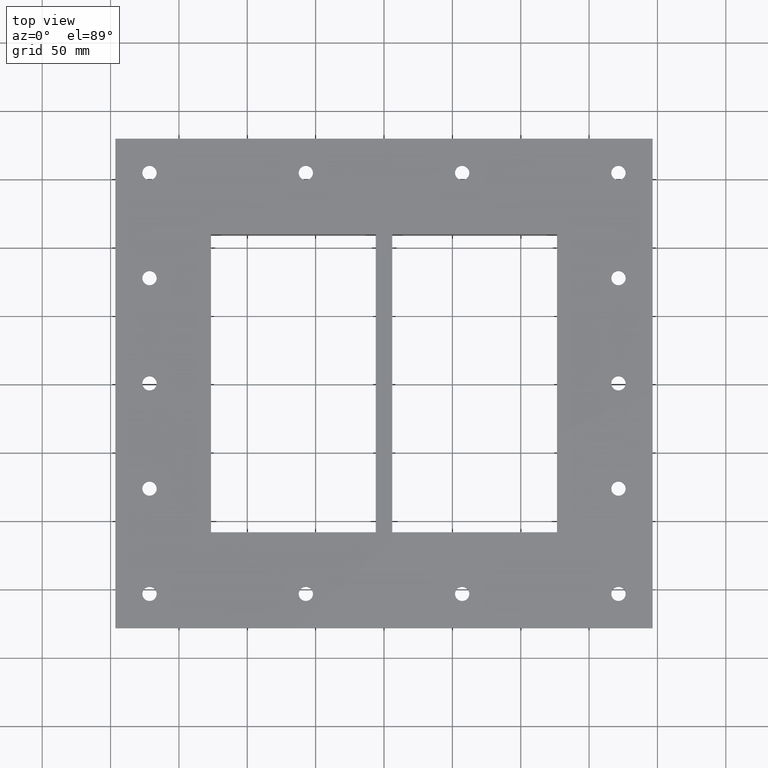
[diagram: clean part render]
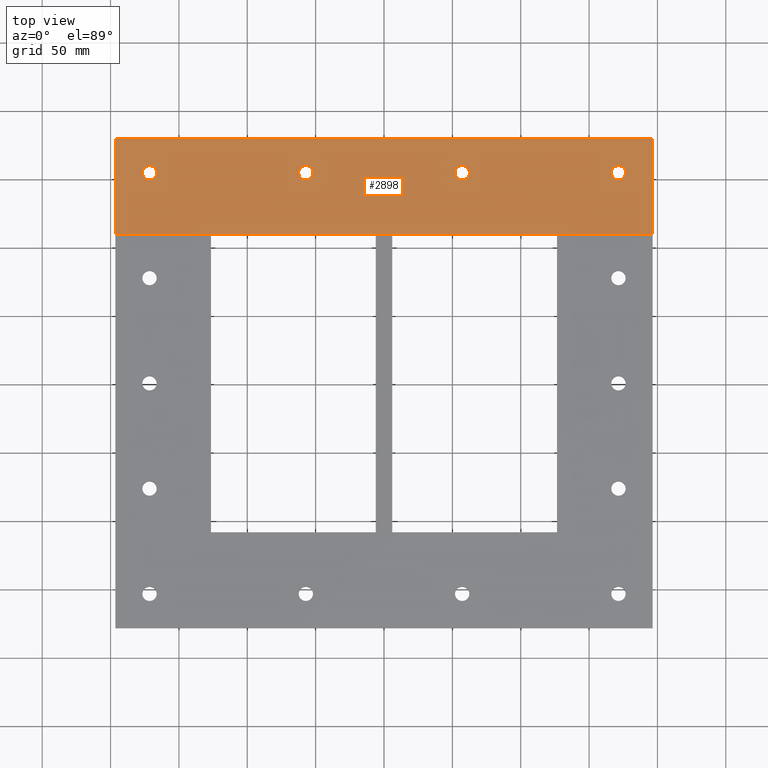
[diagram: same view with one face highlighted and labeled with its STEP entity id]
A machine part, top view. The second image highlights one B-rep face of the part: STEP entity #2898.
In plain terms, the highlighted planar face has unit normal (0, 0, 1).
Its self-contained STEP definition (entity closure, byte-faithful):
#271=FACE_BOUND('',#745,.T.);
#272=FACE_BOUND('',#746,.T.);
#273=FACE_BOUND('',#747,.T.);
#274=FACE_BOUND('',#748,.T.);
#383=CIRCLE('',#3343,5.25);
#384=CIRCLE('',#3344,5.25);
#385=CIRCLE('',#3345,5.25);
#386=CIRCLE('',#3346,5.25);
#535=FACE_OUTER_BOUND('',#744,.T.);
#744=EDGE_LOOP('',(#2317,#2318,#2319,#2320));
#745=EDGE_LOOP('',(#2321));
#746=EDGE_LOOP('',(#2322));
#747=EDGE_LOOP('',(#2323));
#748=EDGE_LOOP('',(#2324));
#1000=LINE('',#4770,#1223);
#1001=LINE('',#4772,#1224);
#1002=LINE('',#4774,#1225);
#1003=LINE('',#4775,#1226);
#1223=VECTOR('',#3918,10.);
#1224=VECTOR('',#3919,10.);
#1225=VECTOR('',#3920,10.);
#1226=VECTOR('',#3921,10.);
#1450=VERTEX_POINT('',#4768);
#1451=VERTEX_POINT('',#4769);
#1452=VERTEX_POINT('',#4771);
#1453=VERTEX_POINT('',#4773);
#1454=VERTEX_POINT('',#4776);
#1455=VERTEX_POINT('',#4778);
#1456=VERTEX_POINT('',#4780);
#1457=VERTEX_POINT('',#4782);
#1763=EDGE_CURVE('',#1450,#1451,#1000,.T.);
#1764=EDGE_CURVE('',#1451,#1452,#1001,.T.);
#1765=EDGE_CURVE('',#1452,#1453,#1002,.T.);
#1766=EDGE_CURVE('',#1453,#1450,#1003,.T.);
#1767=EDGE_CURVE('',#1454,#1454,#383,.T.);
#1768=EDGE_CURVE('',#1455,#1455,#384,.T.);
#1769=EDGE_CURVE('',#1456,#1456,#385,.T.);
#1770=EDGE_CURVE('',#1457,#1457,#386,.T.);
#2317=ORIENTED_EDGE('',*,*,#1763,.T.);
#2318=ORIENTED_EDGE('',*,*,#1764,.T.);
#2319=ORIENTED_EDGE('',*,*,#1765,.T.);
#2320=ORIENTED_EDGE('',*,*,#1766,.T.);
#2321=ORIENTED_EDGE('',*,*,#1767,.T.);
#2322=ORIENTED_EDGE('',*,*,#1768,.T.);
#2323=ORIENTED_EDGE('',*,*,#1769,.T.);
#2324=ORIENTED_EDGE('',*,*,#1770,.T.);
#2776=PLANE('',#3342);
#2898=ADVANCED_FACE('',(#535,#271,#272,#273,#274),#2776,.T.);
#3342=AXIS2_PLACEMENT_3D('',#4767,#3916,#3917);
#3343=AXIS2_PLACEMENT_3D('',#4777,#3922,#3923);
#3344=AXIS2_PLACEMENT_3D('',#4779,#3924,#3925);
#3345=AXIS2_PLACEMENT_3D('',#4781,#3926,#3927);
#3346=AXIS2_PLACEMENT_3D('',#4783,#3928,#3929);
#3916=DIRECTION('center_axis',(0.,0.,1.));
#3917=DIRECTION('ref_axis',(1.,0.,0.));
#3918=DIRECTION('',(-1.98475624513995E-16,1.,0.));
#3919=DIRECTION('',(-1.,-9.0399839155229E-17,0.));
#3920=DIRECTION('',(3.96951249027989E-16,-1.,0.));
#3921=DIRECTION('',(1.,0.,0.));
#3922=DIRECTION('center_axis',(0.,0.,-1.));
#3923=DIRECTION('ref_axis',(1.,0.,0.));
#3924=DIRECTION('center_axis',(0.,0.,-1.));
#3925=DIRECTION('ref_axis',(1.,0.,0.));
#3926=DIRECTION('center_axis',(0.,0.,-1.));
#3927=DIRECTION('ref_axis',(1.,0.,0.));
#3928=DIRECTION('center_axis',(0.,0.,-1.));
#3929=DIRECTION('ref_axis',(1.,0.,0.));
#4767=CARTESIAN_POINT('Origin',(8.88178419700125E-15,0.,0.));
#4768=CARTESIAN_POINT('',(196.5,109.,0.));
#4769=CARTESIAN_POINT('',(196.5,179.,0.));
#4770=CARTESIAN_POINT('',(196.5,-179.,0.));
#4771=CARTESIAN_POINT('',(-196.5,179.,0.));
#4772=CARTESIAN_POINT('',(196.5,179.,0.));
#4773=CARTESIAN_POINT('',(-196.5,109.,0.));
#4774=CARTESIAN_POINT('',(-196.5,179.,0.));
#4775=CARTESIAN_POINT('',(-98.25,109.,0.));
#4776=CARTESIAN_POINT('',(-176.75,154.,0.));
#4777=CARTESIAN_POINT('Origin',(-171.5,154.,0.));
#4778=CARTESIAN_POINT('',(166.25,154.,0.));
#4779=CARTESIAN_POINT('Origin',(171.5,154.,0.));
#4780=CARTESIAN_POINT('',(51.9166666666669,154.,0.));
#4781=CARTESIAN_POINT('Origin',(57.1666666666669,154.,0.));
#4782=CARTESIAN_POINT('',(-62.4166666666664,154.,0.));
#4783=CARTESIAN_POINT('Origin',(-57.1666666666664,154.,0.));